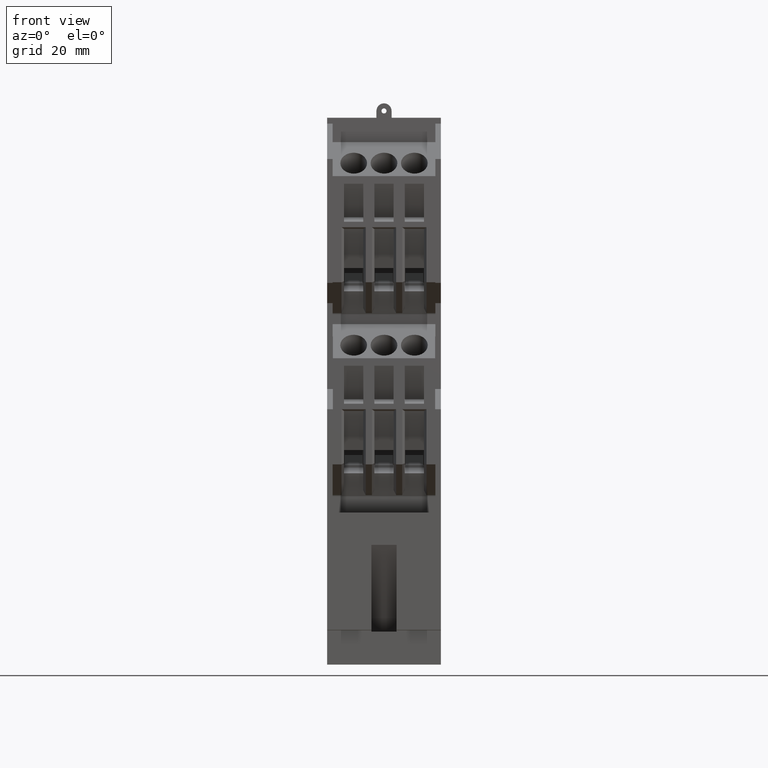
[diagram: clean part render]
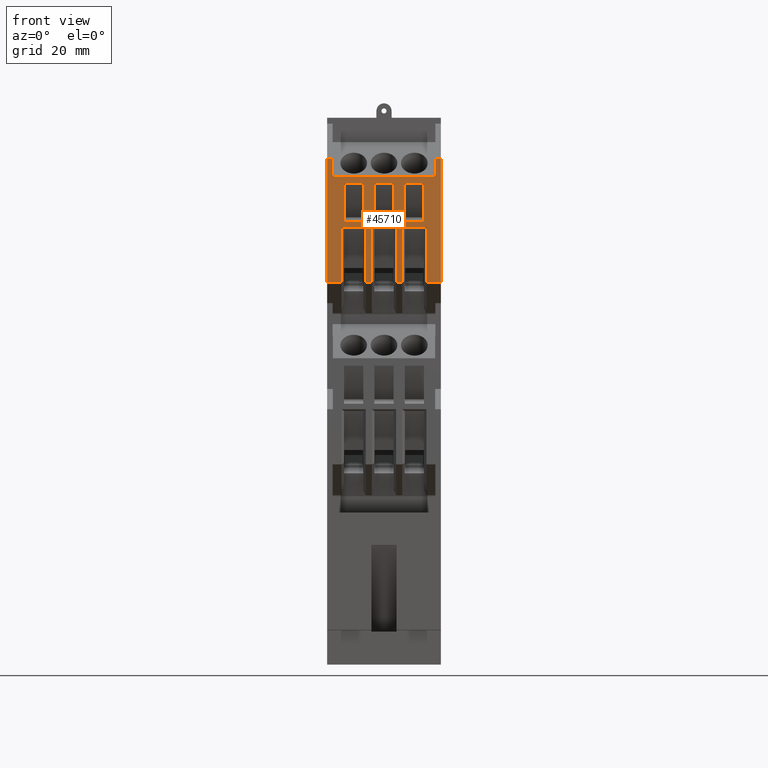
[diagram: same view with one face highlighted and labeled with its STEP entity id]
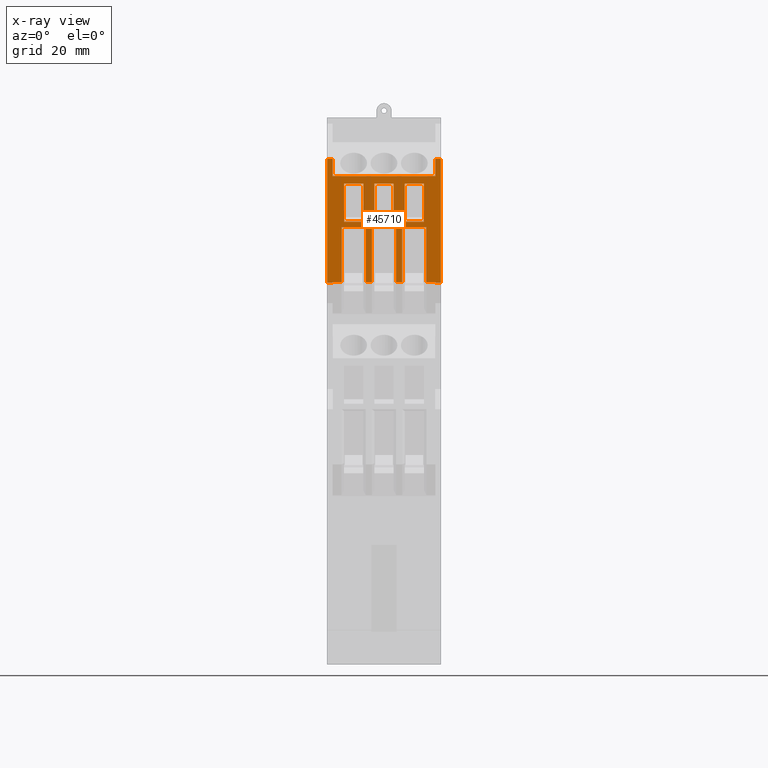
[diagram: x-ray of the same camera — body ghosted, the highlighted face saturated]
A machine part, front view. The second image highlights one B-rep face of the part: STEP entity #45710.
The next image is the same camera in x-ray: the body ghosted, the highlighted face saturated — about 0% of this face is hidden behind the body in this view.
In plain terms, the highlighted planar face has unit normal (0, 1, 0).
Its self-contained STEP definition (entity closure, byte-faithful):
#60=CARTESIAN_POINT('',(-11.1893993066638,-48.15123605348,
60.5000000000012));
#70=DIRECTION('',(0.,0.,-1.));
#80=VECTOR('',#70,1.);
#90=LINE('',#60,#80);
#100=CARTESIAN_POINT('',(-11.1893993066638,-48.15123605348,
155.499999999925));
#110=VERTEX_POINT('',#100);
#120=CARTESIAN_POINT('',(-11.1893993066638,-48.15123605348,
131.000000000001));
#130=VERTEX_POINT('',#120);
#140=EDGE_CURVE('',#110,#130,#90,.T.);
#42950=CARTESIAN_POINT('',(-11.1893993066638,-48.15123605348,
155.500000000001));
#42960=DIRECTION('',(0.,1.,0.));
#42970=DIRECTION('',(0.,0.,1.));
#42980=AXIS2_PLACEMENT_3D('',#42950,#42960,#42970);
#42990=PLANE('',#42980);
#43000=CARTESIAN_POINT('',(0.,-48.1512360534851,143.089162713875));
#43010=DIRECTION('',(1.,-1.7830043539703E-18,3.46944695195361E-18));
#43020=VECTOR('',#43010,1.);
#43030=LINE('',#43000,#43020);
#43040=CARTESIAN_POINT('',(-7.83939930666382,-48.1512360534851,
143.089162713875));
#43050=VERTEX_POINT('',#43040);
#43060=CARTESIAN_POINT('',(-4.03939930666381,-48.1512360534851,
143.089162713875));
#43070=VERTEX_POINT('',#43060);
#43080=EDGE_CURVE('',#43050,#43070,#43030,.T.);
#43090=ORIENTED_EDGE('',*,*,#43080,.F.);
#43100=CARTESIAN_POINT('',(-4.03939930666381,-48.1512360534799,0.));
#43110=DIRECTION('',(3.63664530847381E-18,3.61932706027801E-14,-1.));
#43120=VECTOR('',#43110,1.);
#43130=LINE('',#43100,#43120);
#43140=CARTESIAN_POINT('',(-4.03939930666381,-48.1512360534853,
150.607301309887));
#43150=VERTEX_POINT('',#43140);
#43160=EDGE_CURVE('',#43150,#43070,#43130,.T.);
#43170=ORIENTED_EDGE('',*,*,#43160,.T.);
#43180=CARTESIAN_POINT('',(0.,-48.1512360534853,150.607301309887));
#43190=DIRECTION('',(1.,-1.7830043539703E-18,3.46944695195361E-18));
#43200=VECTOR('',#43190,1.);
#43210=LINE('',#43180,#43200);
#43220=CARTESIAN_POINT('',(-7.83939930666382,-48.1512360534853,
150.607301309887));
#43230=VERTEX_POINT('',#43220);
#43240=EDGE_CURVE('',#43230,#43150,#43210,.T.);
#43250=ORIENTED_EDGE('',*,*,#43240,.T.);
#43260=CARTESIAN_POINT('',(-7.83939930666382,-48.1512360534799,0.));
#43270=DIRECTION('',(-3.46944695195361E-18,-3.61932706027801E-14,1.));
#43280=VECTOR('',#43270,1.);
#43290=LINE('',#43260,#43280);
#43300=EDGE_CURVE('',#43050,#43230,#43290,.T.);
#43310=ORIENTED_EDGE('',*,*,#43300,.T.);
#43320=EDGE_LOOP('',(#43310,#43250,#43170,#43090));
#43330=FACE_BOUND('',#43320,.T.);
#43340=CARTESIAN_POINT('',(0.,-48.1512360534851,143.089162713875));
#43350=DIRECTION('',(1.,-1.7830043539703E-18,3.46944695195361E-18));
#43360=VECTOR('',#43350,1.);
#43370=LINE('',#43340,#43360);
#43380=CARTESIAN_POINT('',(4.16060069333618,-48.1512360534851,
143.089162713875));
#43390=VERTEX_POINT('',#43380);
#43400=CARTESIAN_POINT('',(7.96060069333618,-48.1512360534851,
143.089162713875));
#43410=VERTEX_POINT('',#43400);
#43420=EDGE_CURVE('',#43390,#43410,#43370,.T.);
#43430=ORIENTED_EDGE('',*,*,#43420,.F.);
#43440=CARTESIAN_POINT('',(7.96060069333618,-48.1512360534799,0.));
#43450=DIRECTION('',(3.63664530847381E-18,3.61932706027801E-14,-1.));
#43460=VECTOR('',#43450,1.);
#43470=LINE('',#43440,#43460);
#43480=CARTESIAN_POINT('',(7.96060069333618,-48.1512360534853,
150.607301309887));
#43490=VERTEX_POINT('',#43480);
#43500=EDGE_CURVE('',#43490,#43410,#43470,.T.);
#43510=ORIENTED_EDGE('',*,*,#43500,.T.);
#43520=CARTESIAN_POINT('',(0.,-48.1512360534853,150.607301309887));
#43530=DIRECTION('',(1.,-1.7830043539703E-18,3.46944695195361E-18));
#43540=VECTOR('',#43530,1.);
#43550=LINE('',#43520,#43540);
#43560=CARTESIAN_POINT('',(4.16060069333618,-48.1512360534853,
150.607301309887));
#43570=VERTEX_POINT('',#43560);
#43580=EDGE_CURVE('',#43570,#43490,#43550,.T.);
#43590=ORIENTED_EDGE('',*,*,#43580,.T.);
#43600=CARTESIAN_POINT('',(4.16060069333618,-48.1512360534799,0.));
#43610=DIRECTION('',(-3.46944695195361E-18,-3.61932706027801E-14,1.));
#43620=VECTOR('',#43610,1.);
#43630=LINE('',#43600,#43620);
#43640=EDGE_CURVE('',#43390,#43570,#43630,.T.);
#43650=ORIENTED_EDGE('',*,*,#43640,.T.);
#43660=EDGE_LOOP('',(#43650,#43590,#43510,#43430));
#43670=FACE_BOUND('',#43660,.T.);
#43680=CARTESIAN_POINT('',(0.,-48.1512360534851,143.089162713875));
#43690=DIRECTION('',(1.,-1.7830043539703E-18,3.46944695195361E-18));
#43700=VECTOR('',#43690,1.);
#43710=LINE('',#43680,#43700);
#43720=CARTESIAN_POINT('',(-1.83939930666382,-48.1512360534851,
143.089162713875));
#43730=VERTEX_POINT('',#43720);
#43740=CARTESIAN_POINT('',(1.96060069333618,-48.1512360534851,
143.089162713875));
#43750=VERTEX_POINT('',#43740);
#43760=EDGE_CURVE('',#43730,#43750,#43710,.T.);
#43770=ORIENTED_EDGE('',*,*,#43760,.F.);
#43780=CARTESIAN_POINT('',(1.96060069333618,-48.1512360534799,0.));
#43790=DIRECTION('',(3.63664530847381E-18,3.61932706027801E-14,-1.));
#43800=VECTOR('',#43790,1.);
#43810=LINE('',#43780,#43800);
#43820=CARTESIAN_POINT('',(1.96060069333618,-48.1512360534853,
150.607301309887));
#43830=VERTEX_POINT('',#43820);
#43840=EDGE_CURVE('',#43830,#43750,#43810,.T.);
#43850=ORIENTED_EDGE('',*,*,#43840,.T.);
#43860=CARTESIAN_POINT('',(0.,-48.1512360534853,150.607301309887));
#43870=DIRECTION('',(1.,-1.7830043539703E-18,3.46944695195361E-18));
#43880=VECTOR('',#43870,1.);
#43890=LINE('',#43860,#43880);
#43900=CARTESIAN_POINT('',(-1.83939930666382,-48.1512360534853,
150.607301309887));
#43910=VERTEX_POINT('',#43900);
#43920=EDGE_CURVE('',#43910,#43830,#43890,.T.);
#43930=ORIENTED_EDGE('',*,*,#43920,.T.);
#43940=CARTESIAN_POINT('',(-1.83939930666382,-48.1512360534799,0.));
#43950=DIRECTION('',(-3.46944695195361E-18,-3.61932706027801E-14,1.));
#43960=VECTOR('',#43950,1.);
#43970=LINE('',#43940,#43960);
#43980=EDGE_CURVE('',#43730,#43910,#43970,.T.);
#43990=ORIENTED_EDGE('',*,*,#43980,.T.);
#44000=EDGE_LOOP('',(#43990,#43930,#43850,#43770));
#44010=FACE_BOUND('',#44000,.T.);
#44020=CARTESIAN_POINT('',(10.2106006933362,-48.15123605348,0.));
#44030=DIRECTION('',(0.,0.,-1.));
#44040=VECTOR('',#44030,1.);
#44050=LINE('',#44020,#44040);
#44060=CARTESIAN_POINT('',(10.2106006933362,-48.1512360534846,
131.109407023275));
#44070=VERTEX_POINT('',#44060);
#44080=CARTESIAN_POINT('',(10.2106006933362,-48.1512360534799,
131.000000000001));
#44090=VERTEX_POINT('',#44080);
#44100=EDGE_CURVE('',#44070,#44090,#44050,.T.);
#44110=ORIENTED_EDGE('',*,*,#44100,.T.);
#44120=CARTESIAN_POINT('',(0.121201386672368,-48.1512360534846,
131.109407023275));
#44130=DIRECTION('',(1.,-1.7830043539703E-18,3.46944695195361E-18));
#44140=VECTOR('',#44130,1.);
#44150=LINE('',#44120,#44140);
#44160=CARTESIAN_POINT('',(8.46060069333618,-48.1512360534846,
131.109407023275));
#44170=VERTEX_POINT('',#44160);
#44180=EDGE_CURVE('',#44170,#44070,#44150,.T.);
#44190=ORIENTED_EDGE('',*,*,#44180,.T.);
#44200=CARTESIAN_POINT('',(8.46060069333618,-48.1512360534799,0.));
#44210=DIRECTION('',(-3.46944695194528E-18,-3.61932706027801E-14,1.));
#44220=VECTOR('',#44210,1.);
#44230=LINE('',#44200,#44220);
#44240=CARTESIAN_POINT('',(8.46060069333618,-48.151236053485,
141.992896055162));
#44250=VERTEX_POINT('',#44240);
#44260=EDGE_CURVE('',#44170,#44250,#44230,.T.);
#44270=ORIENTED_EDGE('',*,*,#44260,.F.);
#44280=CARTESIAN_POINT('',(0.,-48.151236053485,141.992896055162));
#44290=DIRECTION('',(1.,-1.7830043539703E-18,3.46944695195361E-18));
#44300=VECTOR('',#44290,1.);
#44310=LINE('',#44280,#44300);
#44320=CARTESIAN_POINT('',(3.66060069333619,-48.151236053485,
141.992896055162));
#44330=VERTEX_POINT('',#44320);
#44340=EDGE_CURVE('',#44330,#44250,#44310,.T.);
#44350=ORIENTED_EDGE('',*,*,#44340,.T.);
#44360=CARTESIAN_POINT('',(3.66060069333619,-48.1512360534799,0.));
#44370=DIRECTION('',(3.46944695196312E-18,3.61932706027801E-14,-1.));
#44380=VECTOR('',#44370,1.);
#44390=LINE('',#44360,#44380);
#44400=CARTESIAN_POINT('',(3.66060069333618,-48.1512360534846,
131.109407023275));
#44410=VERTEX_POINT('',#44400);
#44420=EDGE_CURVE('',#44330,#44410,#44390,.T.);
#44430=ORIENTED_EDGE('',*,*,#44420,.F.);
#44440=CARTESIAN_POINT('',(0.,-48.1512360534846,131.109407023275));
#44450=DIRECTION('',(-1.,1.7830043539703E-18,-3.46944695195361E-18));
#44460=VECTOR('',#44450,1.);
#44470=LINE('',#44440,#44460);
#44480=CARTESIAN_POINT('',(2.46060069333619,-48.1512360534846,
131.109407023275));
#44490=VERTEX_POINT('',#44480);
#44500=EDGE_CURVE('',#44410,#44490,#44470,.T.);
#44510=ORIENTED_EDGE('',*,*,#44500,.F.);
#44520=CARTESIAN_POINT('',(2.46060069333617,-48.1512360534799,0.));
#44530=DIRECTION('',(3.46944695194527E-18,3.61932706027801E-14,-1.));
#44540=VECTOR('',#44530,1.);
#44550=LINE('',#44520,#44540);
#44560=CARTESIAN_POINT('',(2.46060069333617,-48.151236053485,
141.992896055162));
#44570=VERTEX_POINT('',#44560);
#44580=EDGE_CURVE('',#44570,#44490,#44550,.T.);
#44590=ORIENTED_EDGE('',*,*,#44580,.T.);
#44600=CARTESIAN_POINT('',(0.,-48.151236053485,141.992896055162));
#44610=DIRECTION('',(1.,-1.7830043539703E-18,3.46944695195361E-18));
#44620=VECTOR('',#44610,1.);
#44630=LINE('',#44600,#44620);
#44640=CARTESIAN_POINT('',(-2.33939930666381,-48.151236053485,
141.992896055162));
#44650=VERTEX_POINT('',#44640);
#44660=EDGE_CURVE('',#44650,#44570,#44630,.T.);
#44670=ORIENTED_EDGE('',*,*,#44660,.T.);
#44680=CARTESIAN_POINT('',(-2.33939930666381,-48.1512360534799,0.));
#44690=DIRECTION('',(3.46944695196313E-18,3.61932706027801E-14,-1.));
#44700=VECTOR('',#44690,1.);
#44710=LINE('',#44680,#44700);
#44720=CARTESIAN_POINT('',(-2.33939930666382,-48.1512360534846,
131.109407023274));
#44730=VERTEX_POINT('',#44720);
#44740=EDGE_CURVE('',#44650,#44730,#44710,.T.);
#44750=ORIENTED_EDGE('',*,*,#44740,.F.);
#44760=CARTESIAN_POINT('',(0.,-48.1512360534846,131.109407023274));
#44770=DIRECTION('',(1.,-1.7830043539703E-18,3.46944695195361E-18));
#44780=VECTOR('',#44770,1.);
#44790=LINE('',#44760,#44780);
#44800=CARTESIAN_POINT('',(-3.53939930666381,-48.1512360534846,
131.109407023274));
#44810=VERTEX_POINT('',#44800);
#44820=EDGE_CURVE('',#44810,#44730,#44790,.T.);
#44830=ORIENTED_EDGE('',*,*,#44820,.T.);
#44840=CARTESIAN_POINT('',(-3.53939930666383,-48.1512360534799,0.));
#44850=DIRECTION('',(3.46944695194527E-18,3.61932706027801E-14,-1.));
#44860=VECTOR('',#44850,1.);
#44870=LINE('',#44840,#44860);
#44880=CARTESIAN_POINT('',(-3.53939930666382,-48.151236053485,
141.992896055162));
#44890=VERTEX_POINT('',#44880);
#44900=EDGE_CURVE('',#44890,#44810,#44870,.T.);
#44910=ORIENTED_EDGE('',*,*,#44900,.T.);
#44920=CARTESIAN_POINT('',(0.,-48.151236053485,141.992896055162));
#44930=DIRECTION('',(1.,-1.7830043539703E-18,3.46944695195361E-18));
#44940=VECTOR('',#44930,1.);
#44950=LINE('',#44920,#44940);
#44960=CARTESIAN_POINT('',(-8.33939930666382,-48.151236053485,
141.992896055162));
#44970=VERTEX_POINT('',#44960);
#44980=EDGE_CURVE('',#44970,#44890,#44950,.T.);
#44990=ORIENTED_EDGE('',*,*,#44980,.T.);
#45000=CARTESIAN_POINT('',(-8.3393993066638,-48.1512360534799,0.));
#45010=DIRECTION('',(3.46944695196535E-18,3.61932706027801E-14,-1.));
#45020=VECTOR('',#45010,1.);
#45030=LINE('',#45000,#45020);
#45040=CARTESIAN_POINT('',(-8.33939930666379,-48.1512360534846,
131.109407023275));
#45050=VERTEX_POINT('',#45040);
#45060=EDGE_CURVE('',#44970,#45050,#45030,.T.);
#45070=ORIENTED_EDGE('',*,*,#45060,.F.);
#45080=CARTESIAN_POINT('',(0.,-48.1512360534846,131.109407023274));
#45090=DIRECTION('',(1.,-1.7830043539703E-18,3.46944695195361E-18));
#45100=VECTOR('',#45090,1.);
#45110=LINE('',#45080,#45100);
#45120=CARTESIAN_POINT('',(-10.0893993066638,-48.15123605348,
131.10940702327));
#45130=VERTEX_POINT('',#45120);
#45140=EDGE_CURVE('',#45130,#45050,#45110,.T.);
#45150=ORIENTED_EDGE('',*,*,#45140,.T.);
#45160=CARTESIAN_POINT('',(-10.0893993066638,-48.15123605348,0.));
#45170=DIRECTION('',(0.,0.,-1.));
#45180=VECTOR('',#45170,1.);
#45190=LINE('',#45160,#45180);
#45200=CARTESIAN_POINT('',(-10.0893993066638,-48.1512360534799,
131.000000000001));
#45210=VERTEX_POINT('',#45200);
#45220=EDGE_CURVE('',#45130,#45210,#45190,.T.);
#45230=ORIENTED_EDGE('',*,*,#45220,.F.);
#45240=CARTESIAN_POINT('',(0.,-48.15123605348,131.000000000001));
#45250=DIRECTION('',(1.,0.,0.));
#45260=VECTOR('',#45250,1.);
#45270=LINE('',#45240,#45260);
#45280=EDGE_CURVE('',#130,#45210,#45270,.T.);
#45290=ORIENTED_EDGE('',*,*,#45280,.T.);
#45300=ORIENTED_EDGE('',*,*,#140,.T.);
#45310=CARTESIAN_POINT('',(0.,-48.15123605348,155.499999999925));
#45320=DIRECTION('',(1.,0.,0.));
#45330=VECTOR('',#45320,1.);
#45340=LINE('',#45310,#45330);
#45350=CARTESIAN_POINT('',(-10.0893993066638,-48.15123605348,
155.499999999925));
#45360=VERTEX_POINT('',#45350);
#45370=EDGE_CURVE('',#110,#45360,#45340,.T.);
#45380=ORIENTED_EDGE('',*,*,#45370,.F.);
#45390=CARTESIAN_POINT('',(-10.0893993066638,-48.15123605348,
152.097547264392));
#45400=VERTEX_POINT('',#45390);
#45410=EDGE_CURVE('',#45360,#45400,#45190,.T.);
#45420=ORIENTED_EDGE('',*,*,#45410,.F.);
#45430=CARTESIAN_POINT('',(0.121201386672368,-48.1512360534854,
152.097547264387));
#45440=DIRECTION('',(1.,-1.7830043539703E-18,3.46944695195361E-18));
#45450=VECTOR('',#45440,1.);
#45460=LINE('',#45430,#45450);
#45470=CARTESIAN_POINT('',(10.2106006933362,-48.1512360534826,
152.09754726439));
#45480=VERTEX_POINT('',#45470);
#45490=EDGE_CURVE('',#45400,#45480,#45460,.T.);
#45500=ORIENTED_EDGE('',*,*,#45490,.F.);
#45510=CARTESIAN_POINT('',(10.2106006933362,-48.15123605348,
155.499999999925));
#45520=VERTEX_POINT('',#45510);
#45530=EDGE_CURVE('',#45520,#45480,#44050,.T.);
#45540=ORIENTED_EDGE('',*,*,#45530,.T.);
#45550=CARTESIAN_POINT('',(11.3106006933362,-48.15123605348,
155.499999999925));
#45560=VERTEX_POINT('',#45550);
#45570=EDGE_CURVE('',#45520,#45560,#45340,.T.);
#45580=ORIENTED_EDGE('',*,*,#45570,.F.);
#45590=CARTESIAN_POINT('',(11.3106006933362,-48.15123605348,0.));
#45600=DIRECTION('',(0.,0.,-1.));
#45610=VECTOR('',#45600,1.);
#45620=LINE('',#45590,#45610);
#45630=CARTESIAN_POINT('',(11.3106006933362,-48.15123605348,
131.000000000001));
#45640=VERTEX_POINT('',#45630);
#45650=EDGE_CURVE('',#45560,#45640,#45620,.T.);
#45660=ORIENTED_EDGE('',*,*,#45650,.F.);
#45670=EDGE_CURVE('',#44090,#45640,#45270,.T.);
#45680=ORIENTED_EDGE('',*,*,#45670,.T.);
#45690=EDGE_LOOP('',(#45680,#45660,#45580,#45540,#45500,#45420,#45380,
#45300,#45290,#45230,#45150,#45070,#44990,#44910,#44830,#44750,#44670,
#44590,#44510,#44430,#44350,#44270,#44190,#44110));
#45700=FACE_OUTER_BOUND('',#45690,.T.);
#45710=ADVANCED_FACE('',(#43330,#43670,#44010,#45700),#42990,.F.);